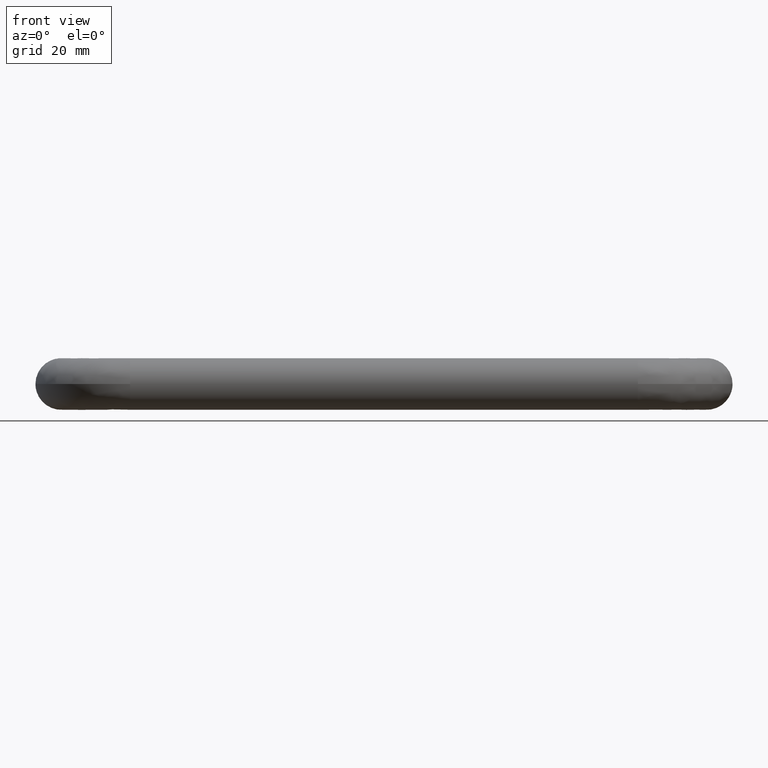
[diagram: clean part render]
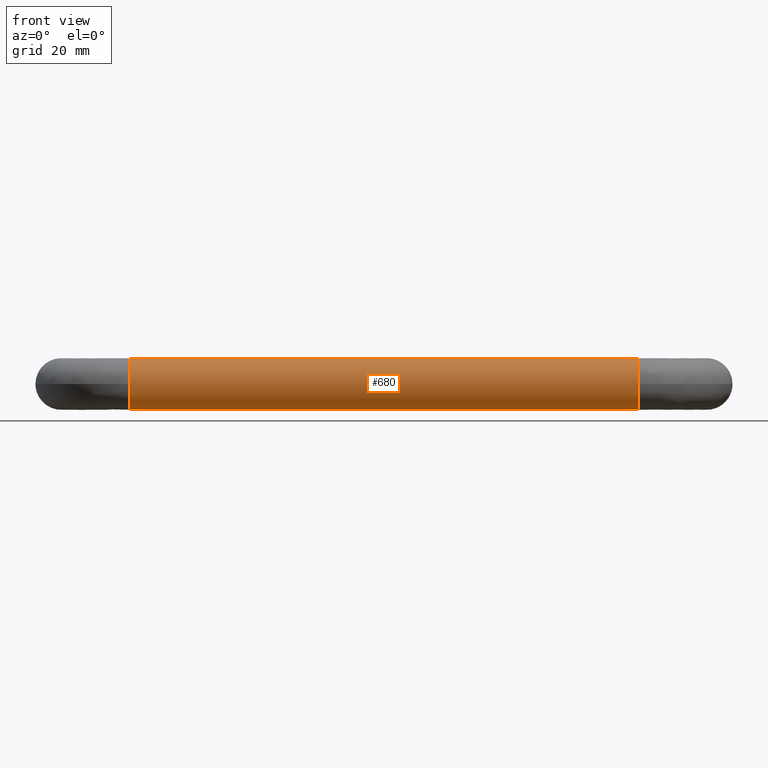
[diagram: same view with one face highlighted and labeled with its STEP entity id]
A machine part, front view. The second image highlights one B-rep face of the part: STEP entity #680.
In plain terms, the highlighted face is a freeform B-spline surface patch.
Its self-contained STEP definition (entity closure, byte-faithful):
#428=CARTESIAN_POINT('',(133.999973486176490,-49.999999999968040,-7.347638E-016));
#429=VERTEX_POINT('',#428);
#460=CARTESIAN_POINT('',(133.999985703023610,-44.470754574599333,5.981504002379809));
#461=VERTEX_POINT('',#460);
#477=CARTESIAN_POINT('',(133.999973486176490,-49.999999999968040,-7.347638E-016));
#478=CARTESIAN_POINT('',(133.999973486176540,-49.999999999968075,5.546342949717582));
#479=CARTESIAN_POINT('',(133.999985703023580,-44.470754574599319,5.981504002379809));
#487=(BOUNDED_CURVE()B_SPLINE_CURVE(2,(#477,#478,#479),.UNSPECIFIED.,.F.,.U.)B_SPLINE_CURVE_WITH_KNOTS((3,3),(0.0,0.472662601251237),.UNSPECIFIED.)CURVE()GEOMETRIC_REPRESENTATION_ITEM()RATIONAL_B_SPLINE_CURVE((1.0,0.723120658613572,0.969723356156897))REPRESENTATION_ITEM(''));
#488=EDGE_CURVE('',#429,#461,#487,.T.);
#523=CARTESIAN_POINT('',(133.999987783284500,-43.529245425400553,-5.981504002381058));
#524=VERTEX_POINT('',#523);
#525=CARTESIAN_POINT('',(133.999987783284470,-43.529245425400539,-5.981504002381058));
#526=CARTESIAN_POINT('',(133.999987264022110,-43.764259357829282,-6.000000000000001));
#527=CARTESIAN_POINT('',(133.999986743154010,-43.999999999984020,-6.000000000000001));
#528=CARTESIAN_POINT('',(133.999973486176510,-49.999999999968047,-6.000000000000003));
#529=CARTESIAN_POINT('',(133.999973486176490,-49.999999999968040,-7.347638E-016));
#537=(BOUNDED_CURVE()B_SPLINE_CURVE(2,(#525,#526,#527,#528,#529),.UNSPECIFIED.,.F.,.U.)B_SPLINE_CURVE_WITH_KNOTS((3,2,3),(0.472662601253055,0.500000000000000,1.0),.UNSPECIFIED.)CURVE()GEOMETRIC_REPRESENTATION_ITEM()RATIONAL_B_SPLINE_CURVE((0.969723356158795,0.983986122574041,1.0,0.707106781186548,1.0))REPRESENTATION_ITEM(''));
#538=EDGE_CURVE('',#524,#429,#537,.T.);
#578=CARTESIAN_POINT('',(15.999999999718140,-43.529245425400610,-5.981504002380483));
#579=VERTEX_POINT('',#578);
#580=CARTESIAN_POINT('',(15.999999999718140,-43.529245425400610,-5.981504002380483));
#581=CARTESIAN_POINT('',(133.999987783284500,-43.529245425400553,-5.981504002381058));
#582=QUASI_UNIFORM_CURVE('',1,(#580,#581),.UNSPECIFIED.,.F.,.U.);
#583=EDGE_CURVE('',#579,#524,#582,.T.);
#600=CARTESIAN_POINT('',(15.999999999735239,-44.470754574599397,5.981504002380483));
#601=VERTEX_POINT('',#600);
#617=CARTESIAN_POINT('',(15.999999999735239,-44.470754574599397,5.981504002380483));
#618=CARTESIAN_POINT('',(133.999985703023610,-44.470754574599333,5.981504002379809));
#619=QUASI_UNIFORM_CURVE('',1,(#617,#618),.UNSPECIFIED.,.F.,.U.);
#620=EDGE_CURVE('',#601,#461,#619,.T.);
#626=CARTESIAN_POINT('',(13.049999999604820,-44.470754574367071,5.981504002398766));
#627=CARTESIAN_POINT('',(13.049999999604820,-50.452258576765843,5.510749428031693));
#628=CARTESIAN_POINT('',(13.049999999604820,-49.981504002398772,-0.470754574367073));
#629=CARTESIAN_POINT('',(13.049999999604820,-49.510749428031694,-6.452258576765838));
#630=CARTESIAN_POINT('',(13.049999999604820,-43.529245425632929,-5.981504002398766));
#631=CARTESIAN_POINT('',(137.023750000144790,-44.470754574367056,5.981504002398766));
#632=CARTESIAN_POINT('',(137.023750000144790,-50.452258576765821,5.510749428031693));
#633=CARTESIAN_POINT('',(137.023750000144790,-49.981504002398751,-0.470754574367073));
#634=CARTESIAN_POINT('',(137.023750000144790,-49.510749428031673,-6.452258576765838));
#635=CARTESIAN_POINT('',(137.023750000144790,-43.529245425632922,-5.981504002398766));
#643=(BOUNDED_SURFACE()B_SPLINE_SURFACE(2,1,((#626,#631),(#627,#632),(#628,#633),(#629,#634),(#630,#635)),.UNSPECIFIED.,.F.,.F.,.U.)B_SPLINE_SURFACE_WITH_KNOTS((3,2,3),(2,2),(0.0,9.941125496954285,19.882250993908571),(0.0,123.973750000539990),.UNSPECIFIED.)GEOMETRIC_REPRESENTATION_ITEM()RATIONAL_B_SPLINE_SURFACE(((1.0,1.0),(0.707106781186548,0.707106781186548),(1.0,1.0),(0.707106781186548,0.707106781186548),(1.0,1.0)))REPRESENTATION_ITEM('')SURFACE());
#644=ORIENTED_EDGE('',*,*,#538,.T.);
#645=ORIENTED_EDGE('',*,*,#488,.T.);
#646=ORIENTED_EDGE('',*,*,#620,.F.);
#647=CARTESIAN_POINT('',(15.999999999835710,-50.0,-7.347638E-016));
#648=VERTEX_POINT('',#647);
#649=CARTESIAN_POINT('',(15.999999999835710,-50.0,-7.347638E-016));
#650=CARTESIAN_POINT('',(15.999999999835715,-49.999999999999986,5.546342949733154));
#651=CARTESIAN_POINT('',(15.999999999735246,-44.470754574599397,5.981504002380483));
#659=(BOUNDED_CURVE()B_SPLINE_CURVE(2,(#649,#650,#651),.UNSPECIFIED.,.F.,.U.)B_SPLINE_CURVE_WITH_KNOTS((3,3),(0.0,0.472662601252217),.UNSPECIFIED.)CURVE()GEOMETRIC_REPRESENTATION_ITEM()RATIONAL_B_SPLINE_CURVE((1.0,0.723120658612997,0.969723356157920))REPRESENTATION_ITEM(''));
#660=EDGE_CURVE('',#648,#601,#659,.T.);
#661=ORIENTED_EDGE('',*,*,#660,.F.);
#662=CARTESIAN_POINT('',(15.999999999718137,-43.529245425400610,-5.981504002380483));
#663=CARTESIAN_POINT('',(15.999999999722403,-43.764259357837282,-6.000000000000002));
#664=CARTESIAN_POINT('',(15.999999999726690,-44.000000000000007,-6.000000000000001));
#665=CARTESIAN_POINT('',(15.999999999835708,-50.0,-6.000000000000003));
#666=CARTESIAN_POINT('',(15.999999999835710,-50.0,-7.347638E-016));
#674=(BOUNDED_CURVE()B_SPLINE_CURVE(2,(#662,#663,#664,#665,#666),.UNSPECIFIED.,.F.,.U.)B_SPLINE_CURVE_WITH_KNOTS((3,2,3),(0.472662601252217,0.500000000000000,1.0),.UNSPECIFIED.)CURVE()GEOMETRIC_REPRESENTATION_ITEM()RATIONAL_B_SPLINE_CURVE((0.969723356157920,0.983986122573550,1.0,0.707106781186548,1.0))REPRESENTATION_ITEM(''));
#675=EDGE_CURVE('',#579,#648,#674,.T.);
#676=ORIENTED_EDGE('',*,*,#675,.F.);
#677=ORIENTED_EDGE('',*,*,#583,.T.);
#678=EDGE_LOOP('',(#644,#645,#646,#661,#676,#677));
#679=FACE_OUTER_BOUND('',#678,.T.);
#680=ADVANCED_FACE('',(#679),#643,.T.);